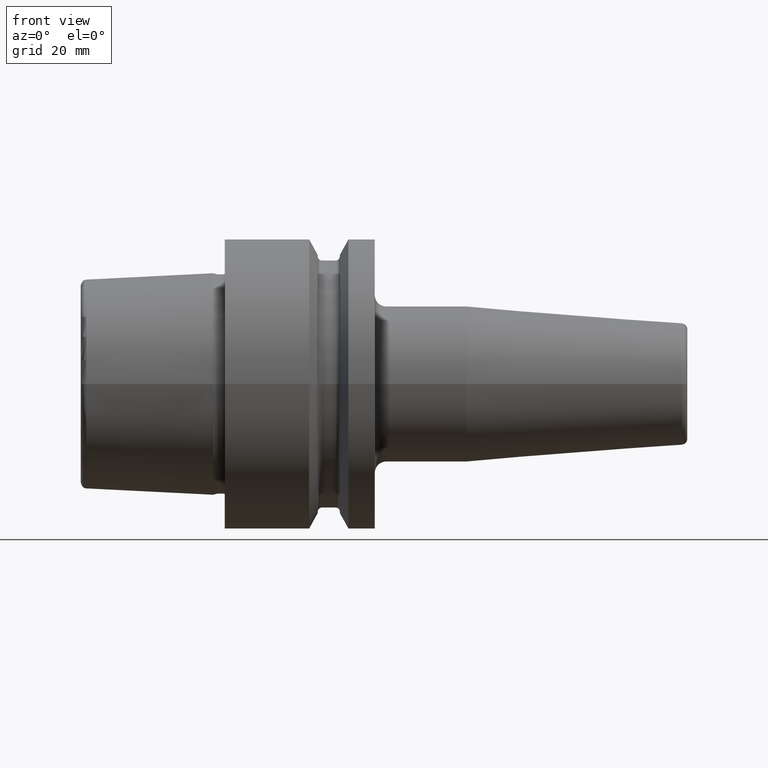
[diagram: clean part render]
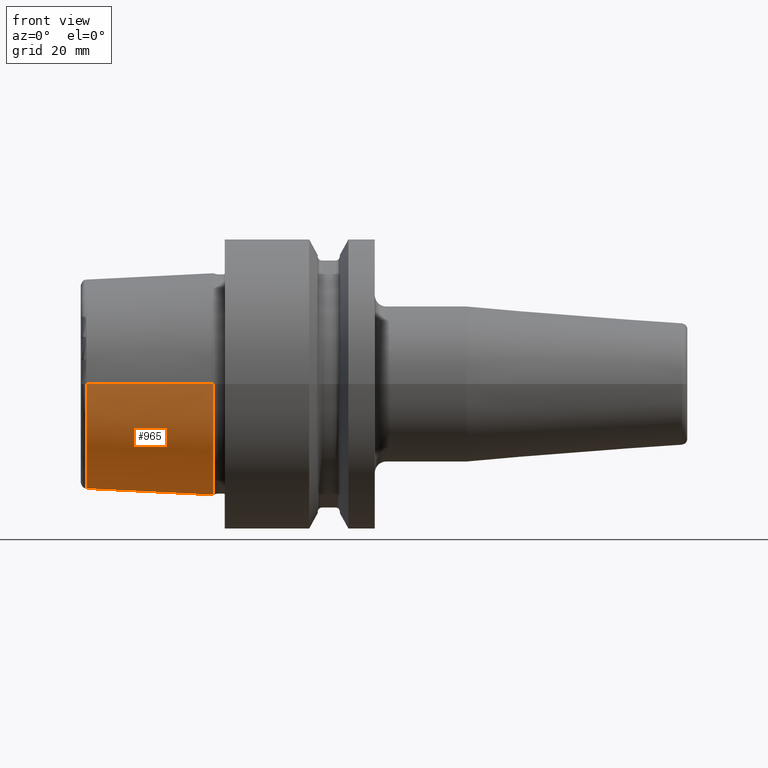
[diagram: same view with one face highlighted and labeled with its STEP entity id]
A machine part, front view. The second image highlights one B-rep face of the part: STEP entity #965.
In plain terms, the highlighted conical surface has half-angle 2.868 deg.
Its self-contained STEP definition (entity closure, byte-faithful):
#25=CARTESIAN_POINT('',(-2.E0,0.E0,0.E0));
#26=DIRECTION('',(1.E0,0.E0,0.E0));
#27=DIRECTION('',(0.E0,-1.E0,0.E0));
#28=AXIS2_PLACEMENT_3D('',#25,#26,#27);
#30=DIRECTION('',(-9.987473526255E-1,-5.003724236654E-2,0.E0));
#31=VECTOR('',#30,2.197756738445E1);
#32=CARTESIAN_POINT('',(-2.E0,1.91548E1,0.E0));
#33=LINE('',#32,#31);
#34=DIRECTION('',(-9.987473526255E-1,5.003724236654E-2,0.E0));
#35=VECTOR('',#34,2.197756738445E1);
#36=CARTESIAN_POINT('',(-2.E0,-1.91548E1,0.E0));
#37=LINE('',#36,#35);
#48=CARTESIAN_POINT('',(-2.395003724237E1,0.E0,0.E0));
#49=DIRECTION('',(-1.E0,0.E0,0.E0));
#50=DIRECTION('',(0.E0,1.E0,0.E0));
#51=AXIS2_PLACEMENT_3D('',#48,#49,#50);
#752=CARTESIAN_POINT('',(-2.E0,1.91548E1,0.E0));
#753=CARTESIAN_POINT('',(-2.E0,-1.91548E1,0.E0));
#754=VERTEX_POINT('',#752);
#755=VERTEX_POINT('',#753);
#756=CARTESIAN_POINT('',(-2.395003724237E1,1.805510313416E1,0.E0));
#757=VERTEX_POINT('',#756);
#758=CARTESIAN_POINT('',(-2.395003724237E1,-1.805510313416E1,0.E0));
#759=VERTEX_POINT('',#758);
#953=CARTESIAN_POINT('',(-1.297501862118E1,0.E0,0.E0));
#954=DIRECTION('',(1.E0,0.E0,0.E0));
#955=DIRECTION('',(0.E0,-1.E0,0.E0));
#956=AXIS2_PLACEMENT_3D('',#953,#954,#955);
#957=CONICAL_SURFACE('',#956,1.860495156708E1,2.868120487315E0);
#958=ORIENTED_EDGE('',*,*,#944,.T.);
#959=ORIENTED_EDGE('',*,*,#919,.T.);
#961=ORIENTED_EDGE('',*,*,#960,.T.);
#962=ORIENTED_EDGE('',*,*,#915,.F.);
#963=EDGE_LOOP('',(#958,#959,#961,#962));
#964=FACE_OUTER_BOUND('',#963,.F.);
#965=ADVANCED_FACE('',(#964),#957,.T.);
#29=CIRCLE('',#28,1.91548E1);
#52=CIRCLE('',#51,1.805510313416E1);
#915=EDGE_CURVE('',#755,#759,#37,.T.);
#919=EDGE_CURVE('',#754,#757,#33,.T.);
#944=EDGE_CURVE('',#755,#754,#29,.T.);
#960=EDGE_CURVE('',#757,#759,#52,.T.);